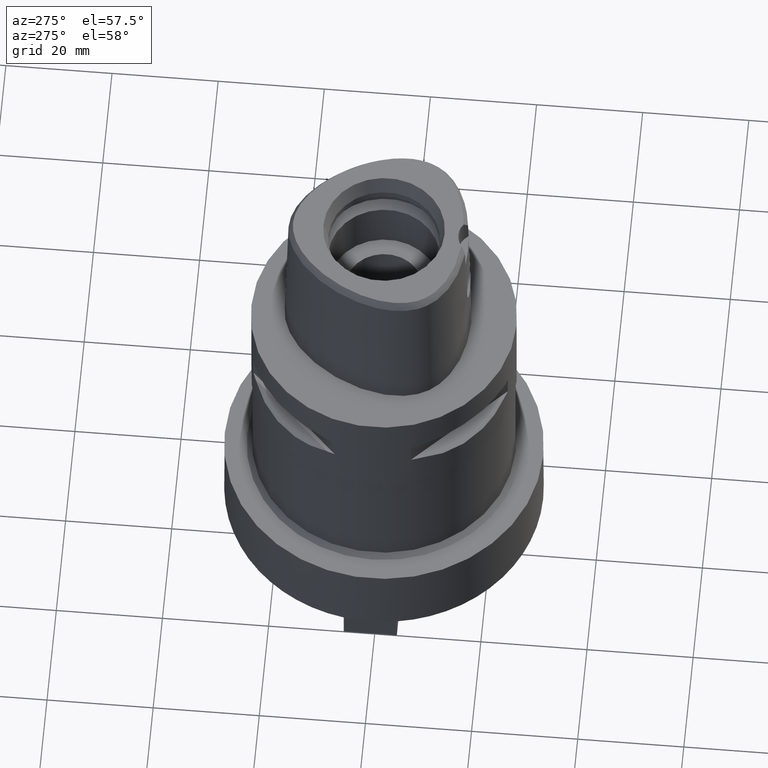
[diagram: clean part render]
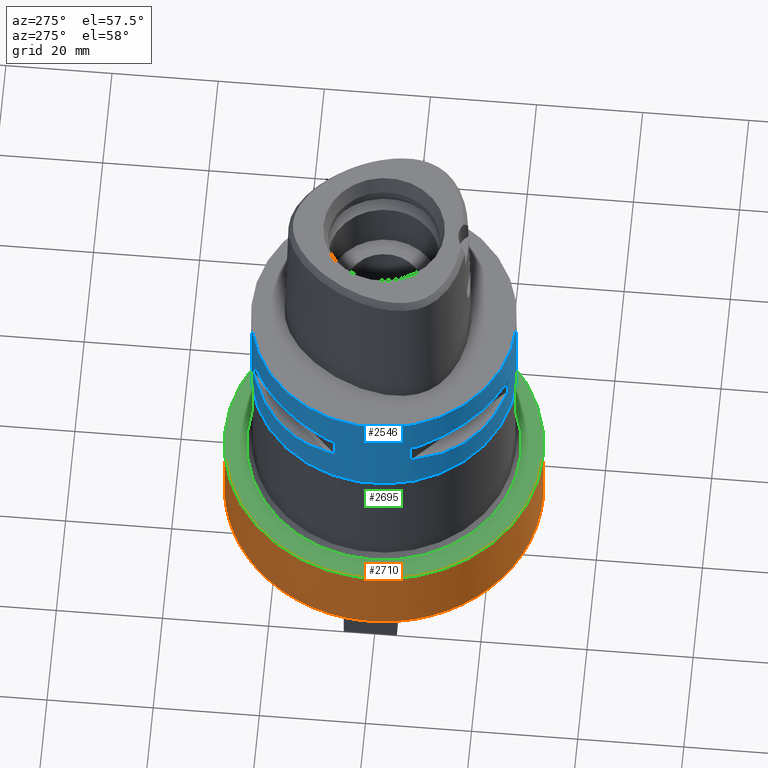
[diagram: same view with three faces highlighted in distinct colors, each labeled with its STEP entity id]
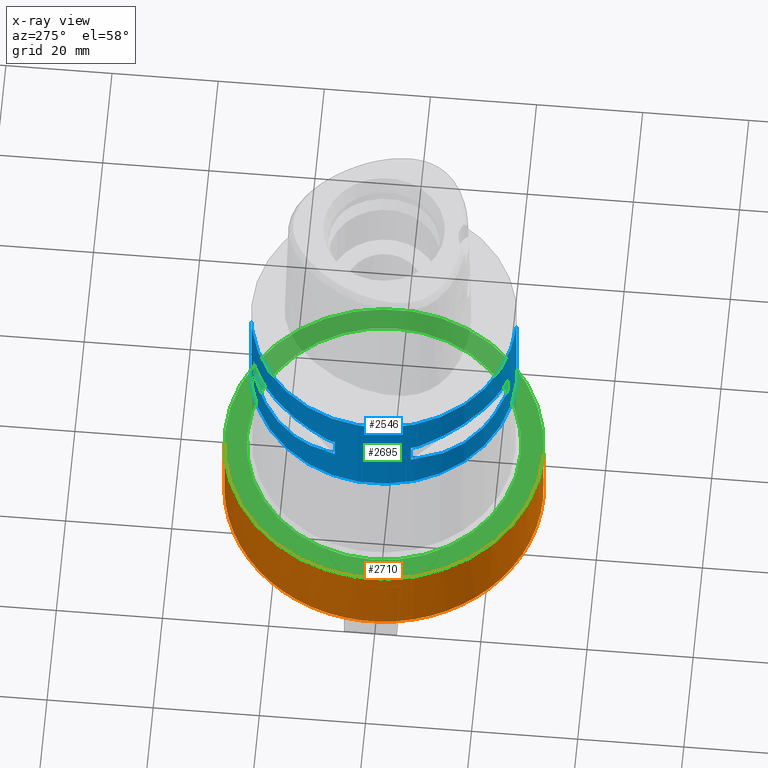
[diagram: x-ray of the same camera — body ghosted, the three highlighted faces saturated]
A machine part, auxiliary view with three faces highlighted in distinct colors.
The next image is the same camera in x-ray (body ghosted, the three faces saturated) — at least one of them is partly hidden behind the body in this view.
Their STEP definitions:

[orange] entity #2710 — the highlighted cylindrical surface (partial cylindrical patch) has radius 30 mm, axis along (0, 0, -1).
#582=CARTESIAN_POINT('',(0.E0,1.272408024314E-14,-4.5E1));
#583=DIRECTION('',(0.E0,0.E0,-1.E0));
#584=DIRECTION('',(0.E0,-1.E0,0.E0));
#585=AXIS2_PLACEMENT_3D('',#582,#583,#584);
#614=DIRECTION('',(0.E0,0.E0,-1.E0));
#615=VECTOR('',#614,1.5E1);
#616=CARTESIAN_POINT('',(0.E0,-3.E1,-4.5E1));
#617=LINE('',#616,#615);
#621=DIRECTION('',(0.E0,0.E0,-1.E0));
#622=VECTOR('',#621,1.5E1);
#623=CARTESIAN_POINT('',(0.E0,3.E1,-4.5E1));
#624=LINE('',#623,#622);
#636=CARTESIAN_POINT('',(0.E0,1.272408024314E-14,-6.E1));
#637=DIRECTION('',(0.E0,0.E0,1.E0));
#638=DIRECTION('',(0.E0,1.E0,0.E0));
#639=AXIS2_PLACEMENT_3D('',#636,#637,#638);
#1754=CARTESIAN_POINT('',(0.E0,-3.E1,-4.5E1));
#1755=CARTESIAN_POINT('',(0.E0,3.E1,-4.5E1));
#1756=VERTEX_POINT('',#1754);
#1757=VERTEX_POINT('',#1755);
#1758=CARTESIAN_POINT('',(0.E0,3.E1,-6.E1));
#1759=VERTEX_POINT('',#1758);
#1760=CARTESIAN_POINT('',(0.E0,-3.E1,-6.E1));
#1761=VERTEX_POINT('',#1760);
#2696=CARTESIAN_POINT('',(0.E0,1.272408024314E-14,3.9E0));
#2697=DIRECTION('',(0.E0,0.E0,-1.E0));
#2698=DIRECTION('',(0.E0,-1.E0,0.E0));
#2699=AXIS2_PLACEMENT_3D('',#2696,#2697,#2698);
#2700=CYLINDRICAL_SURFACE('',#2699,3.E1);
#2702=ORIENTED_EDGE('',*,*,#2701,.F.);
#2703=ORIENTED_EDGE('',*,*,#2685,.F.);
#2705=ORIENTED_EDGE('',*,*,#2704,.T.);
#2707=ORIENTED_EDGE('',*,*,#2706,.F.);
#2708=EDGE_LOOP('',(#2702,#2703,#2705,#2707));
#2709=FACE_OUTER_BOUND('',#2708,.F.);
#586=CIRCLE('',#585,3.E1);
#640=CIRCLE('',#639,3.E1);
#2685=EDGE_CURVE('',#1756,#1757,#586,.T.);
#2701=EDGE_CURVE('',#1757,#1759,#624,.T.);
#2704=EDGE_CURVE('',#1756,#1761,#617,.T.);
#2706=EDGE_CURVE('',#1759,#1761,#640,.T.);
#2710=ADVANCED_FACE('',(#2709),#2700,.T.);

[blue] entity #2546 — the highlighted cylindrical surface (partial cylindrical patch) has radius 25 mm, axis along (0, 0, -1).
#278=CARTESIAN_POINT('',(0.E0,1.272408024314E-14,0.E0));
#279=DIRECTION('',(0.E0,0.E0,-1.E0));
#280=DIRECTION('',(0.E0,-1.E0,0.E0));
#281=AXIS2_PLACEMENT_3D('',#278,#279,#280);
#378=DIRECTION('',(0.E0,7.592199477848E-14,-1.E0));
#379=VECTOR('',#378,1.965358983849E1);
#380=CARTESIAN_POINT('',(0.E0,-2.5E1,0.E0));
#381=LINE('',#380,#379);
#385=DIRECTION('',(0.E0,0.E0,-1.E0));
#386=VECTOR('',#385,4.1E0);
#387=CARTESIAN_POINT('',(-7.159921374231E0,2.395277699798E1,-7.95E0));
#388=LINE('',#387,#386);
#392=CARTESIAN_POINT('',(-8.646484890752E0,2.345715880140E1,-1.205E1));
#393=CARTESIAN_POINT('',(-1.045010326509E1,2.279233152396E1,-1.251490951850E1));
#394=CARTESIAN_POINT('',(-1.371898848499E1,2.112432544032E1,-1.316846568912E1));
#395=CARTESIAN_POINT('',(-1.780567581317E1,1.780567581317E1,-1.348201576758E1));
#396=CARTESIAN_POINT('',(-2.112432544032E1,1.371898848499E1,-1.316846568912E1));
#397=CARTESIAN_POINT('',(-2.279233152396E1,1.045010326509E1,-1.251490951850E1));
#398=CARTESIAN_POINT('',(-2.345715880140E1,8.646484890752E0,-1.205E1));
#403=DIRECTION('',(0.E0,0.E0,1.E0));
#404=VECTOR('',#403,4.1E0);
#405=CARTESIAN_POINT('',(-2.395277699798E1,7.159921374231E0,-1.205E1));
#406=LINE('',#405,#404);
#410=DIRECTION('',(0.E0,0.E0,-1.E0));
#411=VECTOR('',#410,4.1E0);
#412=CARTESIAN_POINT('',(-2.395277699798E1,-7.159921374231E0,-7.95E0));
#413=LINE('',#412,#411);
#417=CARTESIAN_POINT('',(-2.345715880140E1,-8.646484890752E0,-1.205E1));
#418=CARTESIAN_POINT('',(-2.279233152396E1,-1.045010326509E1,
-1.251490951850E1));
#419=CARTESIAN_POINT('',(-2.112432544032E1,-1.371898848499E1,
-1.316846568912E1));
#420=CARTESIAN_POINT('',(-1.780567581317E1,-1.780567581317E1,
-1.348201576758E1));
#421=CARTESIAN_POINT('',(-1.371898848499E1,-2.112432544032E1,
-1.316846568912E1));
#422=CARTESIAN_POINT('',(-1.045010326509E1,-2.279233152396E1,
-1.251490951850E1));
#423=CARTESIAN_POINT('',(-8.646484890752E0,-2.345715880140E1,-1.205E1));
#428=DIRECTION('',(0.E0,0.E0,1.E0));
#429=VECTOR('',#428,4.1E0);
#430=CARTESIAN_POINT('',(-7.159921374231E0,-2.395277699798E1,-1.205E1));
#431=LINE('',#430,#429);
#435=DIRECTION('',(0.E0,-7.664506139542E-14,-1.E0));
#436=VECTOR('',#435,1.965358983849E1);
#437=CARTESIAN_POINT('',(0.E0,2.5E1,0.E0));
#438=LINE('',#437,#436);
#515=CARTESIAN_POINT('',(0.E0,0.E0,-1.965358983849E1));
#516=DIRECTION('',(0.E0,0.E0,1.E0));
#517=DIRECTION('',(0.E0,1.E0,0.E0));
#518=AXIS2_PLACEMENT_3D('',#515,#516,#517);
#1518=CARTESIAN_POINT('',(-8.646484890752E0,2.345715880140E1,
-7.949999999999E0));
#1519=CARTESIAN_POINT('',(-1.045010326509E1,2.279233152396E1,
-7.485090481495E0));
#1520=CARTESIAN_POINT('',(-1.371898848499E1,2.112432544032E1,
-6.831534310876E0));
#1521=CARTESIAN_POINT('',(-1.780567581317E1,1.780567581317E1,
-6.517984232422E0));
#1522=CARTESIAN_POINT('',(-2.112432544032E1,1.371898848499E1,
-6.831534310876E0));
#1523=CARTESIAN_POINT('',(-2.279233152396E1,1.045010326509E1,
-7.485090481496E0));
#1524=CARTESIAN_POINT('',(-2.345715880140E1,8.646484890752E0,
-7.949999999999E0));
#1529=CARTESIAN_POINT('',(0.E0,1.272408024314E-14,-7.95E0));
#1530=DIRECTION('',(0.E0,0.E0,1.E0));
#1531=DIRECTION('',(-9.382863520558E-1,3.458593956303E-1,0.E0));
#1532=AXIS2_PLACEMENT_3D('',#1529,#1530,#1531);
#1537=CARTESIAN_POINT('',(0.E0,1.272408024314E-14,-7.95E0));
#1538=DIRECTION('',(0.E0,0.E0,1.E0));
#1539=DIRECTION('',(-2.863968549694E-1,9.581110799190E-1,0.E0));
#1540=AXIS2_PLACEMENT_3D('',#1537,#1538,#1539);
#1559=CARTESIAN_POINT('',(0.E0,1.272408024314E-14,-1.205E1));
#1560=DIRECTION('',(0.E0,0.E0,-1.E0));
#1561=DIRECTION('',(-9.581110799190E-1,2.863968549694E-1,0.E0));
#1562=AXIS2_PLACEMENT_3D('',#1559,#1560,#1561);
#1567=CARTESIAN_POINT('',(0.E0,1.272408024314E-14,-1.205E1));
#1568=DIRECTION('',(0.E0,0.E0,-1.E0));
#1569=DIRECTION('',(-3.458593956303E-1,9.382863520558E-1,0.E0));
#1570=AXIS2_PLACEMENT_3D('',#1567,#1568,#1569);
#1589=CARTESIAN_POINT('',(-2.345715880140E1,-8.646484890752E0,
-7.949999999999E0));
#1590=CARTESIAN_POINT('',(-2.279233152396E1,-1.045010326509E1,
-7.485090481496E0));
#1591=CARTESIAN_POINT('',(-2.112432544032E1,-1.371898848499E1,
-6.831534310876E0));
#1592=CARTESIAN_POINT('',(-1.780567581317E1,-1.780567581317E1,
-6.517984232422E0));
#1593=CARTESIAN_POINT('',(-1.371898848499E1,-2.112432544032E1,
-6.831534310876E0));
#1594=CARTESIAN_POINT('',(-1.045010326509E1,-2.279233152396E1,
-7.485090481496E0));
#1595=CARTESIAN_POINT('',(-8.646484890752E0,-2.345715880140E1,
-7.949999999999E0));
#1600=CARTESIAN_POINT('',(0.E0,1.272408024314E-14,-7.95E0));
#1601=DIRECTION('',(0.E0,0.E0,1.E0));
#1602=DIRECTION('',(-3.458593956303E-1,-9.382863520558E-1,0.E0));
#1603=AXIS2_PLACEMENT_3D('',#1600,#1601,#1602);
#1608=CARTESIAN_POINT('',(0.E0,1.272408024314E-14,-7.95E0));
#1609=DIRECTION('',(0.E0,0.E0,1.E0));
#1610=DIRECTION('',(-9.581110799190E-1,-2.863968549694E-1,0.E0));
#1611=AXIS2_PLACEMENT_3D('',#1608,#1609,#1610);
#1630=CARTESIAN_POINT('',(0.E0,1.272408024314E-14,-1.205E1));
#1631=DIRECTION('',(0.E0,0.E0,-1.E0));
#1632=DIRECTION('',(-2.863968549694E-1,-9.581110799190E-1,0.E0));
#1633=AXIS2_PLACEMENT_3D('',#1630,#1631,#1632);
#1638=CARTESIAN_POINT('',(0.E0,1.272408024314E-14,-1.205E1));
#1639=DIRECTION('',(0.E0,0.E0,-1.E0));
#1640=DIRECTION('',(-9.382863520558E-1,-3.458593956303E-1,0.E0));
#1641=AXIS2_PLACEMENT_3D('',#1638,#1639,#1640);
#1682=CARTESIAN_POINT('',(0.E0,-2.5E1,0.E0));
#1683=CARTESIAN_POINT('',(0.E0,2.5E1,0.E0));
#1684=VERTEX_POINT('',#1682);
#1685=VERTEX_POINT('',#1683);
#1686=CARTESIAN_POINT('',(0.E0,2.5E1,-1.965358983849E1));
#1687=VERTEX_POINT('',#1686);
#1688=CARTESIAN_POINT('',(0.E0,-2.5E1,-1.965358983849E1));
#1689=VERTEX_POINT('',#1688);
#1690=VERTEX_POINT('',#1518);
#1691=VERTEX_POINT('',#1524);
#1692=CARTESIAN_POINT('',(-7.159921374235E0,2.395277699798E1,-7.95E0));
#1693=VERTEX_POINT('',#1692);
#1694=CARTESIAN_POINT('',(-7.159921374231E0,2.395277699798E1,-1.205E1));
#1695=VERTEX_POINT('',#1694);
#1696=CARTESIAN_POINT('',(-8.646484890757E0,2.345715880140E1,-1.205E1));
#1697=VERTEX_POINT('',#1696);
#1698=VERTEX_POINT('',#398);
#1699=CARTESIAN_POINT('',(-2.395277699798E1,7.159921374235E0,-1.205E1));
#1700=VERTEX_POINT('',#1699);
#1701=CARTESIAN_POINT('',(-2.395277699798E1,7.159921374231E0,-7.95E0));
#1702=VERTEX_POINT('',#1701);
#1703=VERTEX_POINT('',#1589);
#1704=VERTEX_POINT('',#1595);
#1705=CARTESIAN_POINT('',(-2.395277699798E1,-7.159921374235E0,-7.95E0));
#1706=VERTEX_POINT('',#1705);
#1707=CARTESIAN_POINT('',(-2.395277699798E1,-7.159921374231E0,-1.205E1));
#1708=VERTEX_POINT('',#1707);
#1709=CARTESIAN_POINT('',(-2.345715880140E1,-8.646484890757E0,-1.205E1));
#1710=VERTEX_POINT('',#1709);
#1711=VERTEX_POINT('',#423);
#1712=CARTESIAN_POINT('',(-7.159921374235E0,-2.395277699798E1,-1.205E1));
#1713=VERTEX_POINT('',#1712);
#1714=CARTESIAN_POINT('',(-7.159921374231E0,-2.395277699798E1,-7.95E0));
#1715=VERTEX_POINT('',#1714);
#2496=CARTESIAN_POINT('',(0.E0,1.272408024314E-14,3.9E0));
#2497=DIRECTION('',(0.E0,0.E0,-1.E0));
#2498=DIRECTION('',(0.E0,-1.E0,0.E0));
#2499=AXIS2_PLACEMENT_3D('',#2496,#2497,#2498);
#2500=CYLINDRICAL_SURFACE('',#2499,2.5E1);
#2502=ORIENTED_EDGE('',*,*,#2501,.F.);
#2503=ORIENTED_EDGE('',*,*,#2484,.F.);
#2505=ORIENTED_EDGE('',*,*,#2504,.T.);
#2507=ORIENTED_EDGE('',*,*,#2506,.F.);
#2508=EDGE_LOOP('',(#2502,#2503,#2505,#2507));
#2509=FACE_OUTER_BOUND('',#2508,.F.);
#2511=ORIENTED_EDGE('',*,*,#2510,.F.);
#2513=ORIENTED_EDGE('',*,*,#2512,.F.);
#2515=ORIENTED_EDGE('',*,*,#2514,.T.);
#2517=ORIENTED_EDGE('',*,*,#2516,.F.);
#2519=ORIENTED_EDGE('',*,*,#2518,.T.);
#2521=ORIENTED_EDGE('',*,*,#2520,.F.);
#2523=ORIENTED_EDGE('',*,*,#2522,.T.);
#2525=ORIENTED_EDGE('',*,*,#2524,.F.);
#2526=EDGE_LOOP('',(#2511,#2513,#2515,#2517,#2519,#2521,#2523,#2525));
#2527=FACE_BOUND('',#2526,.F.);
#2529=ORIENTED_EDGE('',*,*,#2528,.F.);
#2531=ORIENTED_EDGE('',*,*,#2530,.F.);
#2533=ORIENTED_EDGE('',*,*,#2532,.T.);
#2535=ORIENTED_EDGE('',*,*,#2534,.F.);
#2537=ORIENTED_EDGE('',*,*,#2536,.T.);
#2539=ORIENTED_EDGE('',*,*,#2538,.F.);
#2541=ORIENTED_EDGE('',*,*,#2540,.T.);
#2543=ORIENTED_EDGE('',*,*,#2542,.F.);
#2544=EDGE_LOOP('',(#2529,#2531,#2533,#2535,#2537,#2539,#2541,#2543));
#2545=FACE_BOUND('',#2544,.F.);
#282=CIRCLE('',#281,2.5E1);
#399=B_SPLINE_CURVE_WITH_KNOTS('',3,(#392,#393,#394,#395,#396,#397,#398),
.UNSPECIFIED.,.F.,.F.,(4,1,1,1,4),(0.E0,2.5E-1,5.E-1,7.5E-1,1.E0),
.UNSPECIFIED.);
#424=B_SPLINE_CURVE_WITH_KNOTS('',3,(#417,#418,#419,#420,#421,#422,#423),
.UNSPECIFIED.,.F.,.F.,(4,1,1,1,4),(0.E0,2.5E-1,5.E-1,7.5E-1,1.E0),
.UNSPECIFIED.);
#519=CIRCLE('',#518,2.5E1);
#1525=B_SPLINE_CURVE_WITH_KNOTS('',3,(#1518,#1519,#1520,#1521,#1522,#1523,
#1524),.UNSPECIFIED.,.F.,.F.,(4,1,1,1,4),(0.E0,2.5E-1,5.E-1,7.5E-1,1.E0),
.UNSPECIFIED.);
#1533=CIRCLE('',#1532,2.5E1);
#1541=CIRCLE('',#1540,2.5E1);
#1563=CIRCLE('',#1562,2.5E1);
#1571=CIRCLE('',#1570,2.5E1);
#1596=B_SPLINE_CURVE_WITH_KNOTS('',3,(#1589,#1590,#1591,#1592,#1593,#1594,
#1595),.UNSPECIFIED.,.F.,.F.,(4,1,1,1,4),(0.E0,2.5E-1,5.E-1,7.5E-1,1.E0),
.UNSPECIFIED.);
#1604=CIRCLE('',#1603,2.5E1);
#1612=CIRCLE('',#1611,2.5E1);
#1634=CIRCLE('',#1633,2.5E1);
#1642=CIRCLE('',#1641,2.5E1);
#2484=EDGE_CURVE('',#1684,#1685,#282,.T.);
#2501=EDGE_CURVE('',#1685,#1687,#438,.T.);
#2504=EDGE_CURVE('',#1684,#1689,#381,.T.);
#2506=EDGE_CURVE('',#1687,#1689,#519,.T.);
#2510=EDGE_CURVE('',#1690,#1691,#1525,.T.);
#2512=EDGE_CURVE('',#1693,#1690,#1541,.T.);
#2514=EDGE_CURVE('',#1693,#1695,#388,.T.);
#2516=EDGE_CURVE('',#1697,#1695,#1571,.T.);
#2518=EDGE_CURVE('',#1697,#1698,#399,.T.);
#2520=EDGE_CURVE('',#1700,#1698,#1563,.T.);
#2522=EDGE_CURVE('',#1700,#1702,#406,.T.);
#2524=EDGE_CURVE('',#1691,#1702,#1533,.T.);
#2528=EDGE_CURVE('',#1703,#1704,#1596,.T.);
#2530=EDGE_CURVE('',#1706,#1703,#1612,.T.);
#2532=EDGE_CURVE('',#1706,#1708,#413,.T.);
#2534=EDGE_CURVE('',#1710,#1708,#1642,.T.);
#2536=EDGE_CURVE('',#1710,#1711,#424,.T.);
#2538=EDGE_CURVE('',#1713,#1711,#1634,.T.);
#2540=EDGE_CURVE('',#1713,#1715,#431,.T.);
#2542=EDGE_CURVE('',#1704,#1715,#1604,.T.);
#2546=ADVANCED_FACE('',(#2509,#2527,#2545),#2500,.T.);

[green] entity #2695 — the highlighted planar face has unit normal (0, 0, -1).
#582=CARTESIAN_POINT('',(0.E0,1.272408024314E-14,-4.5E1));
#583=DIRECTION('',(0.E0,0.E0,-1.E0));
#584=DIRECTION('',(0.E0,-1.E0,0.E0));
#585=AXIS2_PLACEMENT_3D('',#582,#583,#584);
#590=CARTESIAN_POINT('',(0.E0,1.272408024314E-14,-4.5E1));
#591=DIRECTION('',(0.E0,0.E0,-1.E0));
#592=DIRECTION('',(0.E0,1.E0,0.E0));
#593=AXIS2_PLACEMENT_3D('',#590,#591,#592);
#598=CARTESIAN_POINT('',(0.E0,0.E0,-4.5E1));
#599=DIRECTION('',(0.E0,0.E0,1.E0));
#600=DIRECTION('',(0.E0,-1.E0,0.E0));
#601=AXIS2_PLACEMENT_3D('',#598,#599,#600);
#606=CARTESIAN_POINT('',(0.E0,0.E0,-4.5E1));
#607=DIRECTION('',(0.E0,0.E0,1.E0));
#608=DIRECTION('',(0.E0,1.E0,0.E0));
#609=AXIS2_PLACEMENT_3D('',#606,#607,#608);
#1750=CARTESIAN_POINT('',(0.E0,2.58E1,-4.5E1));
#1751=VERTEX_POINT('',#1750);
#1752=CARTESIAN_POINT('',(0.E0,-2.58E1,-4.5E1));
#1753=VERTEX_POINT('',#1752);
#1754=CARTESIAN_POINT('',(0.E0,-3.E1,-4.5E1));
#1755=CARTESIAN_POINT('',(0.E0,3.E1,-4.5E1));
#1756=VERTEX_POINT('',#1754);
#1757=VERTEX_POINT('',#1755);
#2680=CARTESIAN_POINT('',(0.E0,0.E0,-4.5E1));
#2681=DIRECTION('',(0.E0,0.E0,-1.E0));
#2682=DIRECTION('',(0.E0,-1.E0,0.E0));
#2683=AXIS2_PLACEMENT_3D('',#2680,#2681,#2682);
#2684=PLANE('',#2683);
#2686=ORIENTED_EDGE('',*,*,#2685,.T.);
#2688=ORIENTED_EDGE('',*,*,#2687,.T.);
#2689=EDGE_LOOP('',(#2686,#2688));
#2690=FACE_OUTER_BOUND('',#2689,.F.);
#2691=ORIENTED_EDGE('',*,*,#2659,.T.);
#2692=ORIENTED_EDGE('',*,*,#2675,.T.);
#2693=EDGE_LOOP('',(#2691,#2692));
#2694=FACE_BOUND('',#2693,.F.);
#586=CIRCLE('',#585,3.E1);
#594=CIRCLE('',#593,3.E1);
#602=CIRCLE('',#601,2.58E1);
#610=CIRCLE('',#609,2.58E1);
#2659=EDGE_CURVE('',#1753,#1751,#602,.T.);
#2675=EDGE_CURVE('',#1751,#1753,#610,.T.);
#2685=EDGE_CURVE('',#1756,#1757,#586,.T.);
#2687=EDGE_CURVE('',#1757,#1756,#594,.T.);
#2695=ADVANCED_FACE('',(#2690,#2694),#2684,.F.);